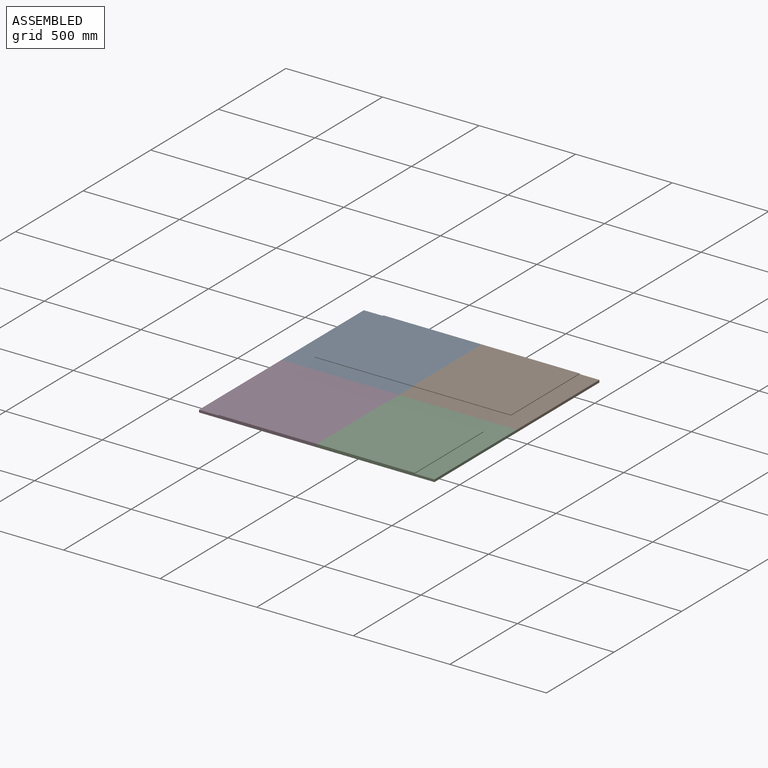
[diagram: assembled view]
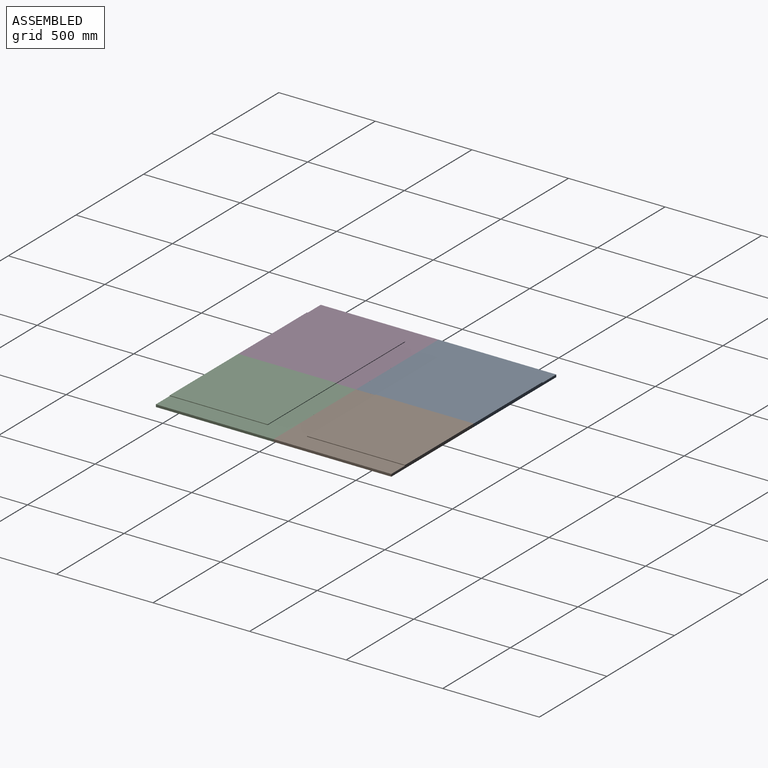
[diagram: assembled view, second angle]
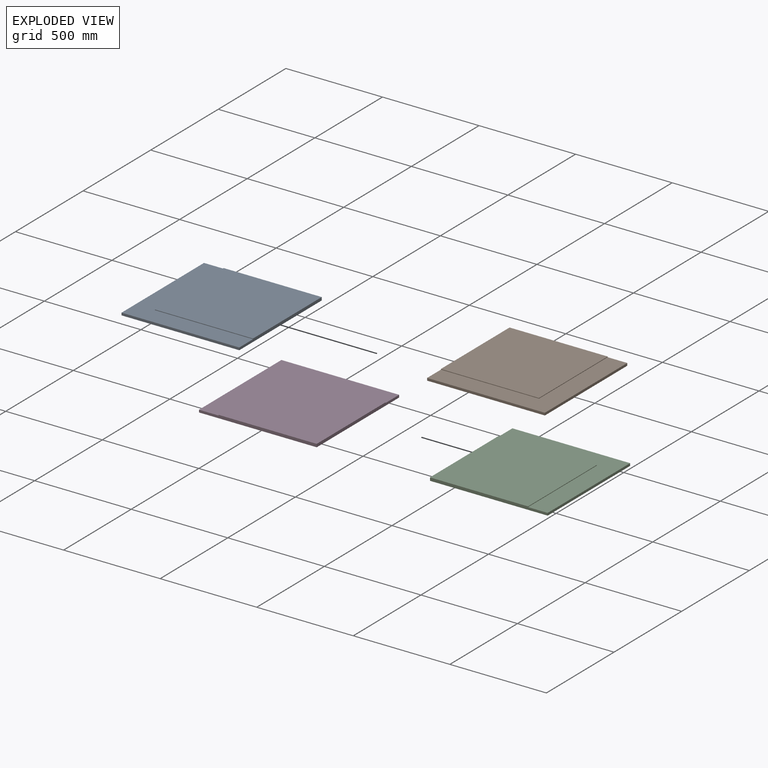
[diagram: exploded view]
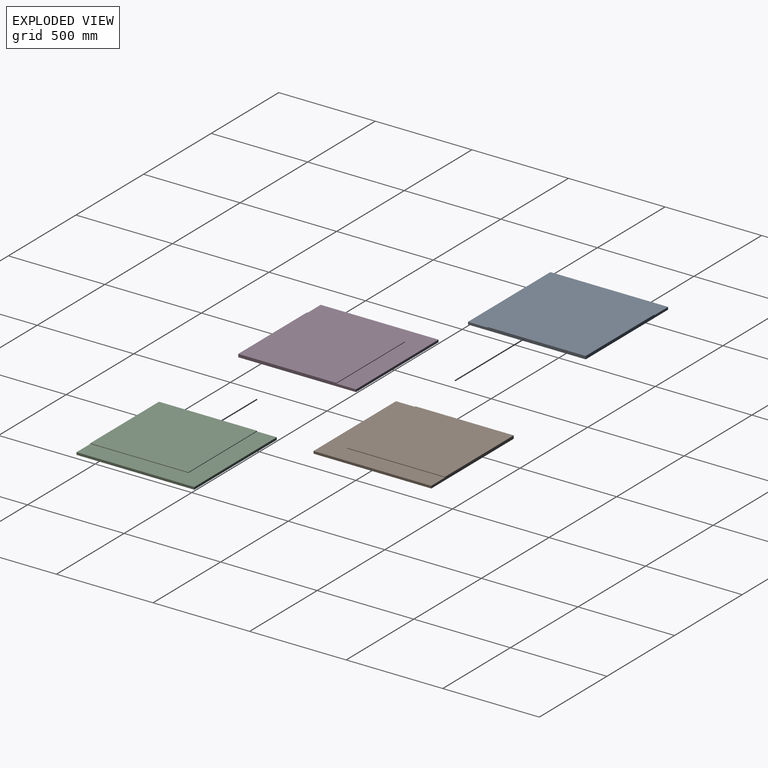
[diagram: exploded view, second angle]
ASSEMBLY  parts=4 mates=3
PART A: 9 faces, bbox 609.6x609.6x15.9 mm
  f0: plane 609.6x609.6mm, normal (0,0,1), area 113548.2mm2, adj f1,f2,f3,f4,f6,f7
  f1: plane 609.6x12.7mm, normal (-1,0,0), area 7741.9mm2, adj f0,f2,f4,f5
  f2: plane 609.6x12.7mm, normal (0,-1,0), area 7741.9mm2, adj f0,f1,f3,f5
  f3: plane 609.6x15.88mm, normal (1,0,0), area 9354.8mm2, adj f0,f2,f4,f5,f6,f8
  f4: plane 609.6x15.88mm, normal (0,1,0), area 9354.8mm2, adj f0,f1,f3,f5,f7,f8
  f5: plane 609.6x609.6mm, normal (0,0,-1), area 371612.2mm2, adj f1,f2,f3,f4
  f6: plane 508x3.18mm, normal (0,-1,0), area 1612.9mm2, adj f0,f3,f7,f8
  f7: plane 508x3.18mm, normal (-1,0,0), area 1612.9mm2, adj f0,f4,f6,f8
  f8: plane 508x508mm, normal (0,0,1), area 258064mm2, adj f3,f4,f6,f7
PART B: 9 faces, bbox 609.6x609.6x15.9 mm
  f0: plane 609.6x609.6mm, normal (0,0,1), area 113548.2mm2, adj f1,f2,f3,f4,f6,f7
  f1: plane 609.6x15.88mm, normal (-1,0,0), area 9354.8mm2, adj f0,f2,f4,f5,f6,f8
  f2: plane 609.6x12.7mm, normal (0,-1,0), area 7741.9mm2, adj f0,f1,f3,f5
  f3: plane 609.6x12.7mm, normal (1,0,0), area 7741.9mm2, adj f0,f2,f4,f5
  f4: plane 609.6x15.88mm, normal (0,1,0), area 9354.8mm2, adj f0,f1,f3,f5,f7,f8
  f5: plane 609.6x609.6mm, normal (0,0,-1), area 371612.2mm2, adj f1,f2,f3,f4
  f6: plane 508x3.18mm, normal (0,-1,0), area 1612.9mm2, adj f0,f1,f7,f8
  f7: plane 508x3.18mm, normal (1,0,0), area 1612.9mm2, adj f0,f4,f6,f8
  f8: plane 508x508mm, normal (0,0,1), area 258064mm2, adj f1,f4,f6,f7
PART C: 9 faces, bbox 609.6x609.6x15.9 mm
  f0: plane 609.6x609.6mm, normal (0,0,1), area 113548.2mm2, adj f1,f2,f3,f4,f6,f7
  f1: plane 609.6x15.88mm, normal (-1,0,0), area 9354.8mm2, adj f0,f2,f4,f5,f6,f8
  f2: plane 609.6x15.88mm, normal (0,-1,0), area 9354.8mm2, adj f0,f1,f3,f5,f7,f8
  f3: plane 609.6x12.7mm, normal (1,0,0), area 7741.9mm2, adj f0,f2,f4,f5
  f4: plane 609.6x12.7mm, normal (0,1,0), area 7741.9mm2, adj f0,f1,f3,f5
  f5: plane 609.6x609.6mm, normal (0,0,-1), area 371612.2mm2, adj f1,f2,f3,f4
  f6: plane 508x3.18mm, normal (0,1,0), area 1612.9mm2, adj f0,f1,f7,f8
  f7: plane 508x3.18mm, normal (1,0,0), area 1612.9mm2, adj f0,f2,f6,f8
  f8: plane 508x508mm, normal (0,0,1), area 258064mm2, adj f1,f2,f6,f7
PART D: 9 faces, bbox 609.6x609.6x15.9 mm
  f0: plane 609.6x609.6mm, normal (0,0,1), area 113548.2mm2, adj f1,f2,f3,f4,f6,f7
  f1: plane 609.6x12.7mm, normal (-1,0,0), area 7741.9mm2, adj f0,f2,f4,f5
  f2: plane 609.6x15.88mm, normal (0,-1,0), area 9354.8mm2, adj f0,f1,f3,f5,f7,f8
  f3: plane 609.6x15.88mm, normal (1,0,0), area 9354.8mm2, adj f0,f2,f4,f5,f6,f8
  f4: plane 609.6x12.7mm, normal (0,1,0), area 7741.9mm2, adj f0,f1,f3,f5
  f5: plane 609.6x609.6mm, normal (0,0,-1), area 371612.2mm2, adj f1,f2,f3,f4
  f6: plane 508x3.18mm, normal (0,1,0), area 1612.9mm2, adj f0,f3,f7,f8
  f7: plane 508x3.18mm, normal (-1,0,0), area 1612.9mm2, adj f0,f2,f6,f8
  f8: plane 508x508mm, normal (0,0,1), area 258064mm2, adj f2,f3,f6,f7
PLACE A t=(-484.96,329.47,-228.33)mm
PLACE B t=(124.64,329.47,-228.33)mm
PLACE C t=(124.64,-280.13,-228.33)mm
PLACE D t=(-484.96,-280.13,-228.33)mm
MATE fastened B.f2 <-> C.f4  axis (0,-1,0) through (124.64,24.67,-221.98)mm
MATE fastened B.f1 <-> A.f3  axis (-1,0,0) through (-180.16,338.23,-220.61)mm
MATE fastened C.f1 <-> D.f3  axis (-1,0,0) through (-180.16,-288.88,-220.61)mm
